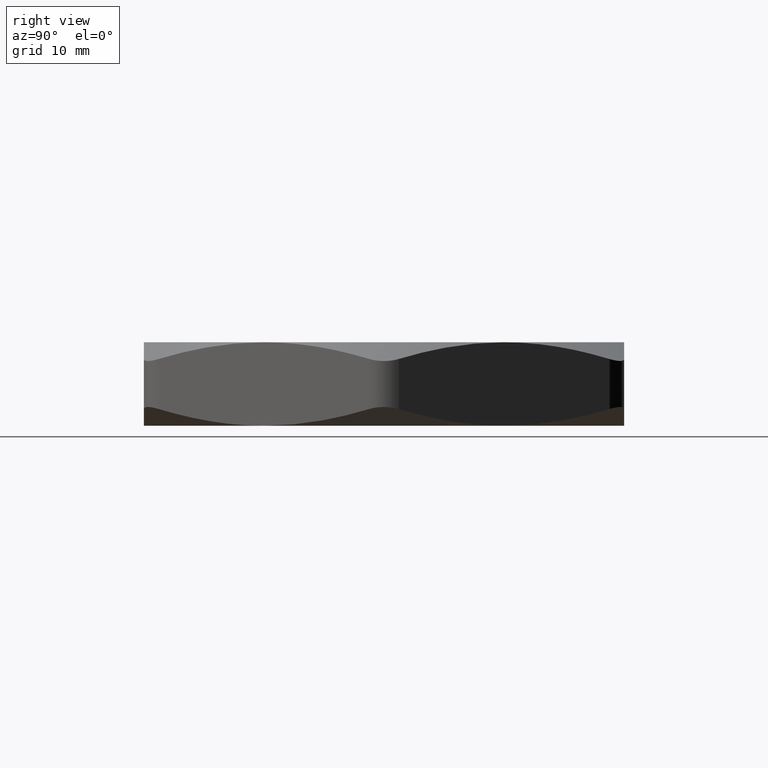
[diagram: clean part render]
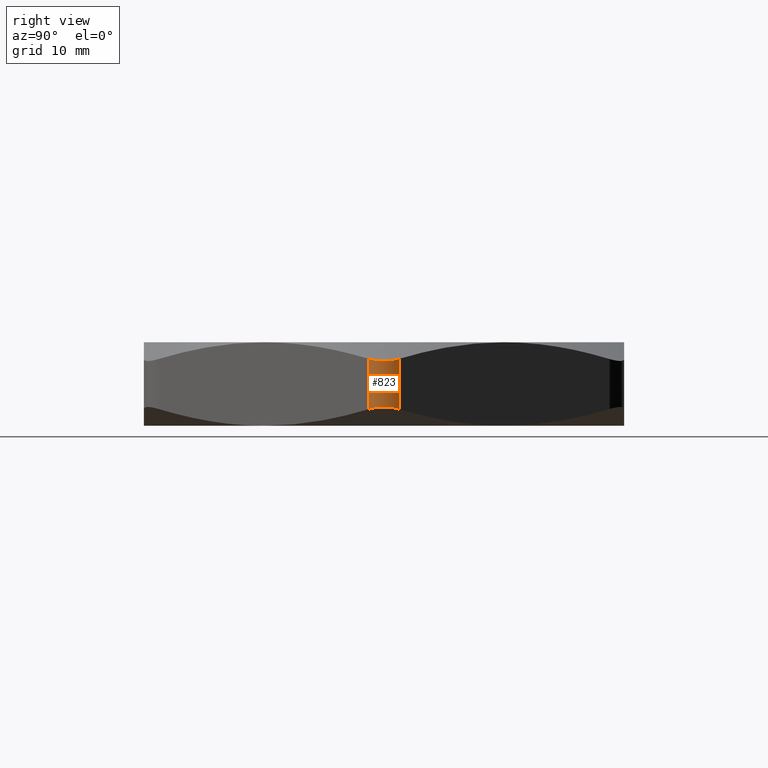
[diagram: same view with one face highlighted and labeled with its STEP entity id]
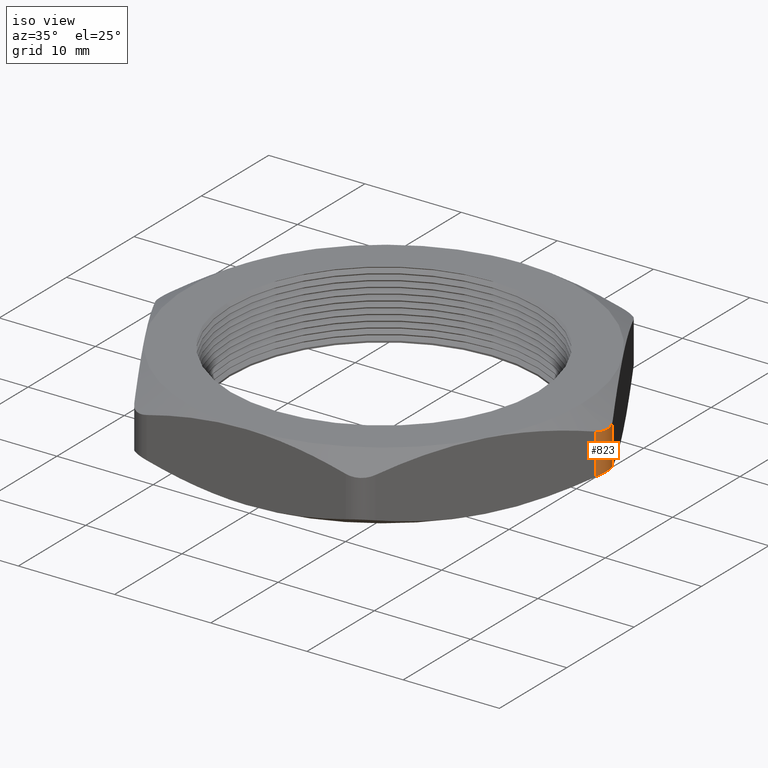
[diagram: same view with one face highlighted and labeled with its STEP entity id]
A machine part, right view. The second image highlights one B-rep face of the part: STEP entity #823.
A second angle (iso view) of the same face is appended — the face is thin or edge-on in the first view.
In plain terms, the highlighted cylindrical surface (edge-blend (fillet) strip) has radius 2.54 mm, axis along (0, 0, -1).
Its self-contained STEP definition (entity closure, byte-faithful):
#298 = VERTEX_POINT ( 'NONE', #1906 ) ;
#300 = EDGE_CURVE ( 'NONE', #298, #301, #1866, .T. ) ;
#301 = VERTEX_POINT ( 'NONE', #1865 ) ;
#533 = VERTEX_POINT ( 'NONE', #1459 ) ;
#554 = VERTEX_POINT ( 'NONE', #1503 ) ;
#557 = EDGE_CURVE ( 'NONE', #554, #533, #1550, .T. ) ;
#622 = VERTEX_POINT ( 'NONE', #1555 ) ;
#623 = EDGE_CURVE ( 'NONE', #301, #622, #1616, .T. ) ;
#692 = EDGE_CURVE ( 'NONE', #533, #298, #1788, .T. ) ;
#750 = EDGE_LOOP ( 'NONE', ( #824, #950, #951, #789, #790 ) ) ;
#789 = ORIENTED_EDGE ( 'NONE', *, *, #623, .F. ) ;
#790 = ORIENTED_EDGE ( 'NONE', *, *, #300, .F. ) ;
#823 = ADVANCED_FACE ( 'NONE', ( #2409 ), #2404, .T. ) ;
#824 = ORIENTED_EDGE ( 'NONE', *, *, #692, .F. ) ;
#893 = EDGE_CURVE ( 'NONE', #622, #554, #2508, .T. ) ;
#950 = ORIENTED_EDGE ( 'NONE', *, *, #557, .F. ) ;
#951 = ORIENTED_EDGE ( 'NONE', *, *, #893, .F. ) ;
#1459 = CARTESIAN_POINT ( 'NONE',  ( 0.9006664199358162000, -0.05000000000000003100, 0.2239663010554733000 ) ) ;
#1503 = CARTESIAN_POINT ( 'NONE',  ( 0.9006664199358162000, -0.05000000000000004400, 0.05603369894452671400 ) ) ;
#1547 = DIRECTION ( 'NONE',  ( 0.0000000000000000000, 0.0000000000000000000, 1.000000000000000000 ) ) ;
#1548 = VECTOR ( 'NONE', #1547, 39.37007874015748100 ) ;
#1549 = CARTESIAN_POINT ( 'NONE',  ( 0.9006664199358162000, -0.05000000000000001000, 0.2800000000000000300 ) ) ;
#1550 = LINE ( 'NONE', #1549, #1548 ) ;
#1555 = CARTESIAN_POINT ( 'NONE',  ( 0.9006664199358162000, 0.04999999999999999600, 0.05603369894452672100 ) ) ;
#1605 = DIRECTION ( 'NONE',  ( 0.0000000000000000000, 0.0000000000000000000, -1.000000000000000000 ) ) ;
#1606 = VECTOR ( 'NONE', #1605, 39.37007874015748100 ) ;
#1615 = CARTESIAN_POINT ( 'NONE',  ( 0.9006664199358162000, 0.04999999999999996800, 0.2800000000000000300 ) ) ;
#1616 = LINE ( 'NONE', #1615, #1606 ) ;
#1781 = CARTESIAN_POINT ( 'NONE',  ( 0.9140638795573723400, -1.176031663477367700E-025, 0.2170319397786865400 ) ) ;
#1782 = CARTESIAN_POINT ( 'NONE',  ( 0.9140638795573723400, -0.008807635816904683900, 0.2170319397786864600 ) ) ;
#1783 = CARTESIAN_POINT ( 'NONE',  ( 0.9128878658695545000, -0.01763036419315783900, 0.2176356531497023200 ) ) ;
#1784 = CARTESIAN_POINT ( 'NONE',  ( 0.9083067403302123000, -0.03457301267701254300, 0.2199992061566142200 ) ) ;
#1785 = CARTESIAN_POINT ( 'NONE',  ( 0.9049784796310009800, -0.04253129352267034900, 0.2217195732279038400 ) ) ;
#1786 = CARTESIAN_POINT ( 'NONE',  ( 0.9006664199358162000, -0.05000000000000003100, 0.2239663010554733000 ) ) ;
#1788 = B_SPLINE_CURVE_WITH_KNOTS ( 'NONE', 3,
 ( #1786, #1785, #1784, #1783, #1782, #1781 ),
 .UNSPECIFIED., .F., .F.,
 ( 4, 2, 4 ),
 ( 2.168404344971008900E-019, 0.0006700270679686230400, 0.001340054135937245600 ),
 .UNSPECIFIED. ) ;
#1857 = CARTESIAN_POINT ( 'NONE',  ( 0.9006664199358162000, 0.04999999999999998200, 0.2239663010554733000 ) ) ;
#1858 = CARTESIAN_POINT ( 'NONE',  ( 0.9049658219381611100, 0.04255321728977606900, 0.2217261683107056000 ) ) ;
#1859 = CARTESIAN_POINT ( 'NONE',  ( 0.9083476670639417700, 0.03444003019786469300, 0.2199780742211808200 ) ) ;
#1860 = CARTESIAN_POINT ( 'NONE',  ( 0.9128758142867152700, 0.01765643853266805900, 0.2176418875526736600 ) ) ;
#1861 = CARTESIAN_POINT ( 'NONE',  ( 0.9140638795573722300, 0.008779100716903178900, 0.2170319397786864600 ) ) ;
#1862 = CARTESIAN_POINT ( 'NONE',  ( 0.9140638795573723400, -1.176031663477367700E-025, 0.2170319397786865400 ) ) ;
#1865 = CARTESIAN_POINT ( 'NONE',  ( 0.9006664199358162000, 0.04999999999999998200, 0.2239663010554733000 ) ) ;
#1866 = B_SPLINE_CURVE_WITH_KNOTS ( 'NONE', 3,
 ( #1862, #1861, #1860, #1859, #1858, #1857 ),
 .UNSPECIFIED., .F., .F.,
 ( 4, 2, 4 ),
 ( 0.001340054135937245600, 0.002007910440969520400, 0.002675766746001795500 ),
 .UNSPECIFIED. ) ;
#1906 = CARTESIAN_POINT ( 'NONE',  ( 0.9140638795573723400, -1.176031663477367700E-025, 0.2170319397786865400 ) ) ;
#2399 = DIRECTION ( 'NONE',  ( -1.000000000000000000, 0.0000000000000000000, 0.0000000000000000000 ) ) ;
#2400 = DIRECTION ( 'NONE',  ( 0.0000000000000000000, 0.0000000000000000000, -1.000000000000000000 ) ) ;
#2401 = CARTESIAN_POINT ( 'NONE',  ( 0.8140638795573723600, -1.707404996040164500E-017, 0.2800000000000000300 ) ) ;
#2402 = AXIS2_PLACEMENT_3D ( 'NONE', #2401, #2400, #2399 ) ;
#2404 = CYLINDRICAL_SURFACE ( 'NONE', #2402, 0.1000000000000000200 ) ;
#2409 = FACE_OUTER_BOUND ( 'NONE', #750, .T. ) ;
#2496 = CARTESIAN_POINT ( 'NONE',  ( 0.9006664199358162000, -0.05000000000000004400, 0.05603369894452671400 ) ) ;
#2497 = CARTESIAN_POINT ( 'NONE',  ( 0.9049728092065638700, -0.04254111498589683400, 0.05827747229064698900 ) ) ;
#2498 = CARTESIAN_POINT ( 'NONE',  ( 0.9083585438616032000, -0.03441384472617307200, 0.06002755000434447500 ) ) ;
#2499 = CARTESIAN_POINT ( 'NONE',  ( 0.9128869973805486800, -0.01760079000475039300, 0.06236386942101735500 ) ) ;
#2500 = CARTESIAN_POINT ( 'NONE',  ( 0.9140713697210175500, -0.008707151024795963700, 0.06297191156815905300 ) ) ;
#2501 = CARTESIAN_POINT ( 'NONE',  ( 0.9140563161161647800, 0.008878355638069643200, 0.06296417119607836100 ) ) ;
#2502 = CARTESIAN_POINT ( 'NONE',  ( 0.9128764291937847600, 0.01768693930189213500, 0.06235845917511481700 ) ) ;
#2503 = CARTESIAN_POINT ( 'NONE',  ( 0.9082958973985293400, 0.03459876588985733000, 0.05999518667511626000 ) ) ;
#2504 = CARTESIAN_POINT ( 'NONE',  ( 0.9049714944957628600, 0.04254339213180005600, 0.05827678728219398000 ) ) ;
#2505 = CARTESIAN_POINT ( 'NONE',  ( 0.9006664199358162000, 0.04999999999999999600, 0.05603369894452672100 ) ) ;
#2508 = B_SPLINE_CURVE_WITH_KNOTS ( 'NONE', 3,
 ( #2505, #2504, #2503, #2502, #2501, #2500, #2499, #2498, #2497, #2496 ),
 .UNSPECIFIED., .F., .F.,
 ( 4, 2, 2, 2, 4 ),
 ( 4.336808689942017700E-019, 0.0006689416865004492000, 0.001337883373000898000, 0.002006825059501346400, 0.002675766746001795100 ),
 .UNSPECIFIED. ) ;